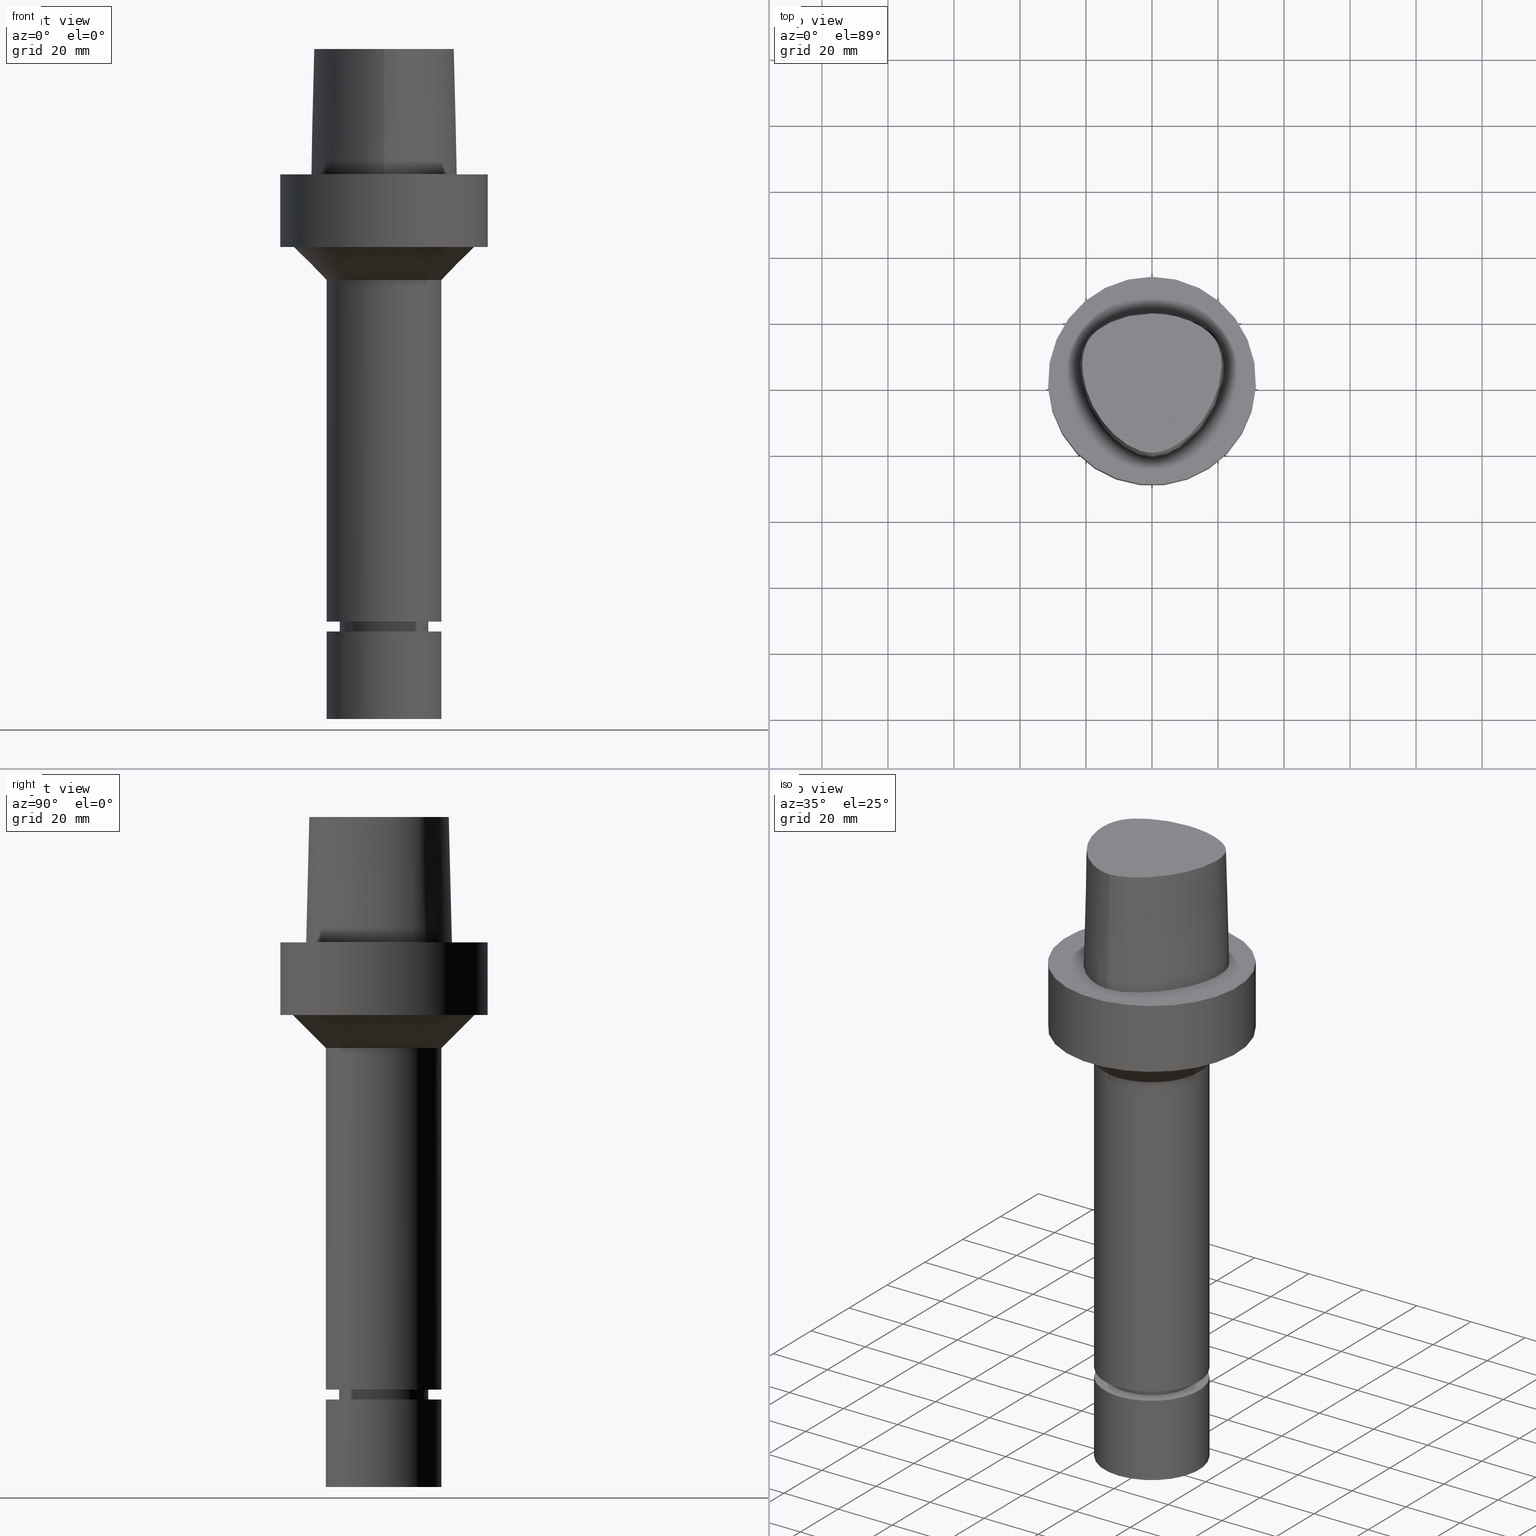
[diagram: canonical four-view strip — front | top / right | iso, engineering-drawing reading convention]
A machine part, canonical four-view strip (front | top / right | iso — engineering-drawing reading convention). The complete STEP part file that produces these views, byte-faithful:
ISO-10303-21;
HEADER;
FILE_DESCRIPTION((''),'1');
FILE_NAME('V:/90_\X2\53D65F9730C730FC30BF\X0\/00_\X2\6DE18DEF30C730FC30BF\X0\/ALL/CAPTO-BKUS\X2\52A05DE556F3\X0\_201801/C6-MEGAER/C6-MEGAER20-165NL.stp','2018-02-01T08:10:21',(''),(''),'Spatial Interop R21 SP3','Kubotek KeyCreator 2011 V10.0.2 (22737)',' ');
FILE_SCHEMA(('automotive_design'));
ENDSEC;
DATA;
#1=MECHANICAL_DESIGN_GEOMETRIC_PRESENTATION_REPRESENTATION(' ',(#14,#15,#16,#17,#18,#19,#20,#21,#22,#23,#24,#25,#26,#27,#28,#29,#30,#31,#32,#33,#34,#35,#36,#37,#38,#39,#40,#41,#42,#43,#44,#45,#46,#47,#48,#49,#50,#51,#52,#53),#10);
#2=PRODUCT_DEFINITION_CONTEXT('',#54,'design');
#3=APPLICATION_PROTOCOL_DEFINITION('INTERNATIONAL STANDARD','automotive_design',1994,#54);
#4=PRODUCT_CATEGORY_RELATIONSHIP('NONE','NONE',#55,#56);
#5=SHAPE_DEFINITION_REPRESENTATION(#57,#58);
#6=PRODUCT_DEFINITION_CONTEXT('',#59,'design');
#7=APPLICATION_PROTOCOL_DEFINITION('INTERNATIONAL STANDARD','automotive_design',1994,#59);
#8=PRODUCT_CATEGORY_RELATIONSHIP('NONE','NONE',#60,#61);
#9=SHAPE_DEFINITION_REPRESENTATION(#62,#63);
#10= (GEOMETRIC_REPRESENTATION_CONTEXT(3)GLOBAL_UNCERTAINTY_ASSIGNED_CONTEXT((#66))GLOBAL_UNIT_ASSIGNED_CONTEXT((#68,#69,#70))REPRESENTATION_CONTEXT('NONE','WORKSPACE'));
#14=STYLED_ITEM('',(#72),#73);
#15=STYLED_ITEM('',(#74),#75);
#16=STYLED_ITEM('',(#76),#77);
#17=STYLED_ITEM('',(#78,#79),#80);
#18=STYLED_ITEM('',(#81,#82),#83);
#19=STYLED_ITEM('',(#84,#85),#86);
#20=STYLED_ITEM('',(#87),#88);
#21=STYLED_ITEM('',(#89,#90),#91);
#22=STYLED_ITEM('',(#92,#93),#94);
#23=STYLED_ITEM('',(#95),#96);
#24=STYLED_ITEM('',(#97),#98);
#25=STYLED_ITEM('',(#99,#100),#101);
#26=STYLED_ITEM('',(#102,#103),#104);
#27=STYLED_ITEM('',(#105),#106);
#28=STYLED_ITEM('',(#107),#108);
#29=STYLED_ITEM('',(#109),#110);
#30=STYLED_ITEM('',(#111),#112);
#31=STYLED_ITEM('',(#113),#114);
#32=STYLED_ITEM('',(#115,#116),#117);
#33=STYLED_ITEM('',(#118),#119);
#34=STYLED_ITEM('',(#120),#121);
#35=STYLED_ITEM('',(#122,#123),#124);
#36=STYLED_ITEM('',(#125,#126),#127);
#37=STYLED_ITEM('',(#128),#129);
#38=STYLED_ITEM('',(#130),#131);
#39=STYLED_ITEM('',(#132,#133),#134);
#40=STYLED_ITEM('',(#135,#136),#137);
#41=STYLED_ITEM('',(#138),#139);
#42=STYLED_ITEM('',(#140,#141),#142);
#43=STYLED_ITEM('',(#143,#144),#145);
#44=STYLED_ITEM('',(#146),#147);
#45=STYLED_ITEM('',(#148),#149);
#46=STYLED_ITEM('',(#150,#151),#152);
#47=STYLED_ITEM('',(#153),#154);
#48=STYLED_ITEM('',(#155,#156),#157);
#49=STYLED_ITEM('',(#158,#159),#160);
#50=STYLED_ITEM('',(#161,#162),#163);
#51=STYLED_ITEM('',(#164,#165),#166);
#52=STYLED_ITEM('',(#167),#168);
#53=STYLED_ITEM('',(#169,#170),#171);
#54=APPLICATION_CONTEXT(' ');
#55=PRODUCT_CATEGORY('part','NONE');
#56=PRODUCT_RELATED_PRODUCT_CATEGORY('detail',' ',(#172));
#57=PRODUCT_DEFINITION_SHAPE('NONE','NONE',#173);
#58=ADVANCED_BREP_SHAPE_REPRESENTATION('Unnamed[1]',(#137,#174),#10);
#59=APPLICATION_CONTEXT(' ');
#60=PRODUCT_CATEGORY('part','NONE');
#61=PRODUCT_RELATED_PRODUCT_CATEGORY('detail',' ',(#175));
#62=PRODUCT_DEFINITION_SHAPE('NONE','NONE',#176);
#63=ADVANCED_BREP_SHAPE_REPRESENTATION('Unnamed[1]',(#86,#177),#10);
#66=UNCERTAINTY_MEASURE_WITH_UNIT(LENGTH_MEASURE(1.0E-006),#68,'','');
#68= (CONVERSION_BASED_UNIT('MILLIMETRE',#180)LENGTH_UNIT()NAMED_UNIT(#183));
#69= (NAMED_UNIT(#185)PLANE_ANGLE_UNIT()SI_UNIT($,.RADIAN.));
#70= (NAMED_UNIT(#185)SOLID_ANGLE_UNIT()SI_UNIT($,.STERADIAN.));
#72=PRESENTATION_STYLE_ASSIGNMENT((#191));
#73=EDGE_CURVE('Unnamed[1]',#192,#192,#193,.T.);
#74=PRESENTATION_STYLE_ASSIGNMENT((#194));
#75=EDGE_CURVE('Unnamed[1]',#195,#195,#196,.T.);
#76=PRESENTATION_STYLE_ASSIGNMENT((#197));
#77=EDGE_CURVE('Unnamed[1]',#198,#198,#199,.T.);
#78=PRESENTATION_STYLE_ASSIGNMENT((#200));
#79=PRESENTATION_STYLE_ASSIGNMENT((#201));
#80=ADVANCED_FACE('Unnamed[1]',(#202,#203),#204,.T.);
#81=PRESENTATION_STYLE_ASSIGNMENT((#205));
#82=PRESENTATION_STYLE_ASSIGNMENT((#206));
#83=ADVANCED_FACE('Unnamed[1]',(#207,#208),#209,.T.);
#84=PRESENTATION_STYLE_ASSIGNMENT((#210));
#85=PRESENTATION_STYLE_ASSIGNMENT((#211));
#86=MANIFOLD_SOLID_BREP('Unnamed[1]',#212);
#87=PRESENTATION_STYLE_ASSIGNMENT((#213));
#88=EDGE_CURVE('Unnamed[1]',#214,#215,#216,.T.);
#89=PRESENTATION_STYLE_ASSIGNMENT((#217));
#90=PRESENTATION_STYLE_ASSIGNMENT((#218));
#91=ADVANCED_FACE('Unnamed[1]',(#219,#220),#221,.T.);
#92=PRESENTATION_STYLE_ASSIGNMENT((#222));
#93=PRESENTATION_STYLE_ASSIGNMENT((#223));
#94=ADVANCED_FACE('Unnamed[1]',(#224,#225),#226,.T.);
#95=PRESENTATION_STYLE_ASSIGNMENT((#227));
#96=EDGE_CURVE('Unnamed[1]',#228,#228,#229,.T.);
#97=PRESENTATION_STYLE_ASSIGNMENT((#230));
#98=EDGE_CURVE('Unnamed[1]',#231,#231,#232,.T.);
#99=PRESENTATION_STYLE_ASSIGNMENT((#233));
#100=PRESENTATION_STYLE_ASSIGNMENT((#234));
#101=ADVANCED_FACE('Unnamed[1]',(#235),#236,.T.);
#102=PRESENTATION_STYLE_ASSIGNMENT((#237));
#103=PRESENTATION_STYLE_ASSIGNMENT((#238));
#104=ADVANCED_FACE('Unnamed[1]',(#239),#240,.T.);
#105=PRESENTATION_STYLE_ASSIGNMENT((#241));
#106=EDGE_CURVE('Unnamed[1]',#214,#242,#243,.T.);
#107=PRESENTATION_STYLE_ASSIGNMENT((#244));
#108=EDGE_CURVE('Unnamed[1]',#245,#245,#246,.T.);
#109=PRESENTATION_STYLE_ASSIGNMENT((#247));
#110=EDGE_CURVE('Unnamed[1]',#214,#248,#249,.T.);
#111=PRESENTATION_STYLE_ASSIGNMENT((#250));
#112=EDGE_CURVE('Unnamed[1]',#251,#251,#252,.T.);
#113=PRESENTATION_STYLE_ASSIGNMENT((#253));
#114=EDGE_CURVE('Unnamed[1]',#215,#254,#255,.T.);
#115=PRESENTATION_STYLE_ASSIGNMENT((#256));
#116=PRESENTATION_STYLE_ASSIGNMENT((#257));
#117=ADVANCED_FACE('Unnamed[1]',(#258,#259),#260,.T.);
#118=PRESENTATION_STYLE_ASSIGNMENT((#261));
#119=EDGE_CURVE('Unnamed[1]',#254,#242,#262,.T.);
#120=PRESENTATION_STYLE_ASSIGNMENT((#263));
#121=EDGE_CURVE('Unnamed[1]',#264,#264,#265,.T.);
#122=PRESENTATION_STYLE_ASSIGNMENT((#266));
#123=PRESENTATION_STYLE_ASSIGNMENT((#267));
#124=ADVANCED_FACE('Unnamed[1]',(#268),#269,.T.);
#125=PRESENTATION_STYLE_ASSIGNMENT((#270));
#126=PRESENTATION_STYLE_ASSIGNMENT((#271));
#127=ADVANCED_FACE('Unnamed[1]',(#272,#273),#274,.T.);
#128=PRESENTATION_STYLE_ASSIGNMENT((#275));
#129=EDGE_CURVE('Unnamed[1]',#248,#254,#276,.T.);
#130=PRESENTATION_STYLE_ASSIGNMENT((#277));
#131=EDGE_CURVE('Unnamed[1]',#278,#278,#279,.T.);
#132=PRESENTATION_STYLE_ASSIGNMENT((#280));
#133=PRESENTATION_STYLE_ASSIGNMENT((#281));
#134=ADVANCED_FACE('Unnamed[1]',(#282),#283,.T.);
#135=PRESENTATION_STYLE_ASSIGNMENT((#284));
#136=PRESENTATION_STYLE_ASSIGNMENT((#285));
#137=MANIFOLD_SOLID_BREP('Unnamed[1]',#286);
#138=PRESENTATION_STYLE_ASSIGNMENT((#287));
#139=EDGE_CURVE('Unnamed[1]',#288,#288,#289,.T.);
#140=PRESENTATION_STYLE_ASSIGNMENT((#290));
#141=PRESENTATION_STYLE_ASSIGNMENT((#291));
#142=ADVANCED_FACE('Unnamed[1]',(#292),#293,.T.);
#143=PRESENTATION_STYLE_ASSIGNMENT((#294));
#144=PRESENTATION_STYLE_ASSIGNMENT((#295));
#145=ADVANCED_FACE('Unnamed[1]',(#296,#297),#298,.T.);
#146=PRESENTATION_STYLE_ASSIGNMENT((#299));
#147=EDGE_CURVE('Unnamed[1]',#242,#215,#300,.T.);
#148=PRESENTATION_STYLE_ASSIGNMENT((#301));
#149=EDGE_CURVE('Unnamed[1]',#302,#302,#303,.T.);
#150=PRESENTATION_STYLE_ASSIGNMENT((#304));
#151=PRESENTATION_STYLE_ASSIGNMENT((#305));
#152=ADVANCED_FACE('Unnamed[1]',(#306,#307),#308,.T.);
#153=PRESENTATION_STYLE_ASSIGNMENT((#309));
#154=EDGE_CURVE('Unnamed[1]',#310,#310,#311,.T.);
#155=PRESENTATION_STYLE_ASSIGNMENT((#312));
#156=PRESENTATION_STYLE_ASSIGNMENT((#313));
#157=ADVANCED_FACE('Unnamed[1]',(#314,#315),#316,.T.);
#158=PRESENTATION_STYLE_ASSIGNMENT((#317));
#159=PRESENTATION_STYLE_ASSIGNMENT((#318));
#160=ADVANCED_FACE('Unnamed[1]',(#319),#320,.T.);
#161=PRESENTATION_STYLE_ASSIGNMENT((#321));
#162=PRESENTATION_STYLE_ASSIGNMENT((#322));
#163=ADVANCED_FACE('Unnamed[1]',(#323),#324,.T.);
#164=PRESENTATION_STYLE_ASSIGNMENT((#325));
#165=PRESENTATION_STYLE_ASSIGNMENT((#326));
#166=ADVANCED_FACE('Unnamed[1]',(#327,#328),#329,.T.);
#167=PRESENTATION_STYLE_ASSIGNMENT((#330));
#168=EDGE_CURVE('Unnamed[1]',#248,#214,#331,.T.);
#169=PRESENTATION_STYLE_ASSIGNMENT((#332));
#170=PRESENTATION_STYLE_ASSIGNMENT((#333));
#171=ADVANCED_FACE('Unnamed[1]',(#334,#335),#336,.T.);
#172=PRODUCT('Unnamed[1]','Unnamed[1]','PART-Unnamed[1]-DESC',(#337));
#173=PRODUCT_DEFINITION('NONE','NONE',#338,#2);
#174=AXIS2_PLACEMENT_3D('',#339,#340,#341);
#175=PRODUCT('Unnamed[1]','Unnamed[1]','PART-Unnamed[1]-DESC',(#342));
#176=PRODUCT_DEFINITION('NONE','NONE',#343,#6);
#177=AXIS2_PLACEMENT_3D('',#344,#345,#346);
#180=LENGTH_MEASURE_WITH_UNIT(LENGTH_MEASURE(1.0),#347);
#183=DIMENSIONAL_EXPONENTS(1.0,0.0,0.0,0.0,0.0,0.0,0.0);
#185=DIMENSIONAL_EXPONENTS(0.0,0.0,0.0,0.0,0.0,0.0,0.0);
#191=CURVE_STYLE('',#348,POSITIVE_LENGTH_MEASURE(1000.0),#349);
#192=VERTEX_POINT('',#350);
#193=CIRCLE('',#351,11.3999999999978);
#194=CURVE_STYLE('',#352,POSITIVE_LENGTH_MEASURE(1000.0),#353);
#195=VERTEX_POINT('',#354);
#196=CIRCLE('',#355,31.5);
#197=CURVE_STYLE('',#356,POSITIVE_LENGTH_MEASURE(1000.0),#357);
#198=VERTEX_POINT('',#358);
#199=CIRCLE('',#359,13.4999999999908);
#200=SURFACE_STYLE_USAGE(.BOTH.,#360);
#201=CURVE_STYLE('',#361,POSITIVE_LENGTH_MEASURE(1000.0),#362);
#202=FACE_BOUND('',#363,.T.);
#203=FACE_BOUND('',#364,.T.);
#204=CONICAL_SURFACE('',#365,11.9499999999988,0.523598775598652);
#205=SURFACE_STYLE_USAGE(.BOTH.,#366);
#206=CURVE_STYLE('',#367,POSITIVE_LENGTH_MEASURE(1000.0),#368);
#207=FACE_BOUND('',#369,.T.);
#208=FACE_BOUND('',#370,.T.);
#209=CYLINDRICAL_SURFACE('',#371,17.5);
#210=SURFACE_STYLE_USAGE(.BOTH.,#372);
#211=CURVE_STYLE('',#373,POSITIVE_LENGTH_MEASURE(1000.0),#374);
#212=CLOSED_SHELL('',(#124,#101,#83));
#213=CURVE_STYLE('',#375,POSITIVE_LENGTH_MEASURE(1000.0),#376);
#214=VERTEX_POINT('',#377);
#215=VERTEX_POINT('',#378);
#216=LINE('',#379,#380);
#217=SURFACE_STYLE_USAGE(.BOTH.,#381);
#218=CURVE_STYLE('',#382,POSITIVE_LENGTH_MEASURE(1000.0),#383);
#219=FACE_BOUND('',#384,.T.);
#220=FACE_BOUND('',#385,.T.);
#221=CONICAL_SURFACE('',#386,13.0000000000002,1.04719755119471);
#222=SURFACE_STYLE_USAGE(.BOTH.,#387);
#223=CURVE_STYLE('',#388,POSITIVE_LENGTH_MEASURE(1000.0),#389);
#224=FACE_BOUND('',#390,.T.);
#225=FACE_OUTER_BOUND('',#391,.T.);
#226=PLANE('',#392);
#227=CURVE_STYLE('',#393,POSITIVE_LENGTH_MEASURE(1000.0),#394);
#228=VERTEX_POINT('',#395);
#229=CIRCLE('',#396,12.4999999999998);
#230=CURVE_STYLE('',#397,POSITIVE_LENGTH_MEASURE(1000.0),#398);
#231=VERTEX_POINT('',#399);
#232=CIRCLE('',#400,27.4999999999996);
#233=SURFACE_STYLE_USAGE(.BOTH.,#401);
#234=CURVE_STYLE('',#402,POSITIVE_LENGTH_MEASURE(1000.0),#403);
#235=FACE_OUTER_BOUND('',#404,.T.);
#236=PLANE('',#405);
#237=SURFACE_STYLE_USAGE(.BOTH.,#406);
#238=CURVE_STYLE('',#407,POSITIVE_LENGTH_MEASURE(1000.0),#408);
#239=FACE_OUTER_BOUND('',#409,.T.);
#240=B_SPLINE_SURFACE_WITH_KNOTS('',3,3,((#410,#411,#412,#413),(#414,#415,#416,#417),(#418,#419,#420,#421),(#422,#423,#424,#425),(#426,#427,#428,#429),(#430,#431,#432,#433),(#434,#435,#436,#437),(#438,#439,#440,#441),(#442,#443,#444,#445),(#446,#447,#448,#449),(#450,#451,#452,#453),(#454,#455,#456,#457),(#458,#459,#460,#461),(#462,#463,#464,#465),(#466,#467,#468,#469),(#470,#471,#472,#473),(#474,#475,#476,#477)),.UNSPECIFIED.,.F.,.F.,.F.,(4,1,1,1,1,1,1,1,1,1,1,1,1,1,4),(4,4),(-13.2302678617486,-12.816821991069,-12.4033761203893,-11.9899302497097,-11.57648437903,-11.1630385083504,-10.9563155730106,-10.7495926376707,-10.3361467669911,-9.92270089631145,-9.09580915495216,-8.26891741359287,-7.44202567223358,-7.02857980155394,-6.6151339308743),(-3.8,0.0),.UNSPECIFIED.);
#241=CURVE_STYLE('',#478,POSITIVE_LENGTH_MEASURE(1000.0),#479);
#242=VERTEX_POINT('',#480);
#243=LINE('',#481,#482);
#244=CURVE_STYLE('',#483,POSITIVE_LENGTH_MEASURE(1000.0),#484);
#245=VERTEX_POINT('',#485);
#246=CIRCLE('',#486,12.4999999999999);
#247=CURVE_STYLE('',#487,POSITIVE_LENGTH_MEASURE(1000.0),#488);
#248=VERTEX_POINT('',#489);
#249=B_SPLINE_CURVE_WITH_KNOTS('',3,(#490,#491,#492,#493,#494,#495,#496,#497,#498,#499,#500,#501,#502,#503,#504,#505),.UNSPECIFIED.,.F.,.F.,(4,1,1,1,1,1,1,1,1,1,1,1,1,4),(0.0,0.447924670568964,0.9388024242536,1.50591409090711,2.07314340012323,2.72424957442464,3.2253501842849,3.80982102049476,4.34867996267067,4.85900173381144,5.37972031856977,6.03459825488646,6.61113557741484,6.61513393087395),.UNSPECIFIED.);
#250=CURVE_STYLE('',#506,POSITIVE_LENGTH_MEASURE(1000.0),#507);
#251=VERTEX_POINT('',#508);
#252=CIRCLE('',#509,13.5000000000005);
#253=CURVE_STYLE('',#510,POSITIVE_LENGTH_MEASURE(1000.0),#511);
#254=VERTEX_POINT('',#512);
#255=B_SPLINE_CURVE_WITH_KNOTS('',3,(#513,#514,#515,#516,#517,#518,#519,#520,#521,#522,#523,#524,#525,#526,#527,#528,#529),.UNSPECIFIED.,.F.,.F.,(4,1,1,1,1,1,1,1,1,1,1,1,1,1,4),(-13.2302678617486,-12.816821991069,-12.4033761203893,-11.9899302497097,-11.57648437903,-11.1630385083504,-10.9563155730106,-10.7495926376707,-10.3361467669911,-9.92270089631145,-9.09580915495216,-8.26891741359287,-7.44202567223358,-7.02857980155394,-6.6151339308743),.UNSPECIFIED.);
#256=SURFACE_STYLE_USAGE(.BOTH.,#530);
#257=CURVE_STYLE('',#531,POSITIVE_LENGTH_MEASURE(1000.0),#532);
#258=FACE_BOUND('',#533,.T.);
#259=FACE_BOUND('',#534,.T.);
#260=CYLINDRICAL_SURFACE('',#535,13.4999999999956);
#261=CURVE_STYLE('',#536,POSITIVE_LENGTH_MEASURE(1000.0),#537);
#262=B_SPLINE_CURVE_WITH_KNOTS('',3,(#538,#539,#540,#541,#542,#543,#544,#545,#546,#547,#548,#549,#550,#551,#552,#553,#554,#555),.UNSPECIFIED.,.F.,.F.,(4,1,1,1,1,1,1,1,1,2,1,1,1,1,4),(-6.6151339308743,-6.20168806019465,-5.78824218951501,-5.37479631883537,-4.96135044815572,-4.13445870679644,-3.30756696543715,-2.89412109475751,-2.48067522407786,-2.06722935339822,-1.65378348271857,-1.24033761203893,-0.826891741359287,-0.413445870679644,0.0),.UNSPECIFIED.);
#263=CURVE_STYLE('',#556,POSITIVE_LENGTH_MEASURE(1000.0),#557);
#264=VERTEX_POINT('',#558);
#265=CIRCLE('',#559,31.5);
#266=SURFACE_STYLE_USAGE(.BOTH.,#560);
#267=CURVE_STYLE('',#561,POSITIVE_LENGTH_MEASURE(1000.0),#562);
#268=FACE_OUTER_BOUND('',#563,.T.);
#269=PLANE('',#564);
#270=SURFACE_STYLE_USAGE(.BOTH.,#565);
#271=CURVE_STYLE('',#566,POSITIVE_LENGTH_MEASURE(1000.0),#567);
#272=FACE_BOUND('',#568,.T.);
#273=FACE_BOUND('',#569,.T.);
#274=CYLINDRICAL_SURFACE('',#570,12.4999999999999);
#275=CURVE_STYLE('',#571,POSITIVE_LENGTH_MEASURE(1000.0),#572);
#276=LINE('',#573,#574);
#277=CURVE_STYLE('',#575,POSITIVE_LENGTH_MEASURE(1000.0),#576);
#278=VERTEX_POINT('',#577);
#279=CIRCLE('',#578,17.4999999999995);
#280=SURFACE_STYLE_USAGE(.BOTH.,#579);
#281=CURVE_STYLE('',#580,POSITIVE_LENGTH_MEASURE(1000.0),#581);
#282=FACE_OUTER_BOUND('',#582,.T.);
#283=PLANE('',#583);
#284=SURFACE_STYLE_USAGE(.BOTH.,#584);
#285=CURVE_STYLE('',#585,POSITIVE_LENGTH_MEASURE(1000.0),#586);
#286=CLOSED_SHELL('',(#104,#163,#142,#160,#94,#166,#157,#152,#145,#171,#117,#91,#127,#80,#134));
#287=CURVE_STYLE('',#587,POSITIVE_LENGTH_MEASURE(1000.0),#588);
#288=VERTEX_POINT('',#589);
#289=CIRCLE('',#590,17.5);
#290=SURFACE_STYLE_USAGE(.BOTH.,#591);
#291=CURVE_STYLE('',#592,POSITIVE_LENGTH_MEASURE(1000.0),#593);
#292=FACE_OUTER_BOUND('',#594,.T.);
#293=CONICAL_SURFACE('',#595,1.0,0.0249931148600041);
#294=SURFACE_STYLE_USAGE(.BOTH.,#596);
#295=CURVE_STYLE('',#597,POSITIVE_LENGTH_MEASURE(1000.0),#598);
#296=FACE_BOUND('',#599,.T.);
#297=FACE_BOUND('',#600,.T.);
#298=CYLINDRICAL_SURFACE('',#601,17.4999999999997);
#299=CURVE_STYLE('',#602,POSITIVE_LENGTH_MEASURE(1000.0),#603);
#300=CIRCLE('',#604,0.949936168436318);
#301=CURVE_STYLE('',#605,POSITIVE_LENGTH_MEASURE(1000.0),#606);
#302=VERTEX_POINT('',#607);
#303=CIRCLE('',#608,17.4999999999999);
#304=SURFACE_STYLE_USAGE(.BOTH.,#609);
#305=CURVE_STYLE('',#610,POSITIVE_LENGTH_MEASURE(1000.0),#611);
#306=FACE_BOUND('',#612,.T.);
#307=FACE_BOUND('',#613,.T.);
#308=CONICAL_SURFACE('',#614,22.4999999999998,0.785398163397431);
#309=CURVE_STYLE('',#615,POSITIVE_LENGTH_MEASURE(1000.0),#616);
#310=VERTEX_POINT('',#617);
#311=CIRCLE('',#618,17.5);
#312=SURFACE_STYLE_USAGE(.BOTH.,#619);
#313=CURVE_STYLE('',#620,POSITIVE_LENGTH_MEASURE(1000.0),#621);
#314=FACE_BOUND('',#622,.T.);
#315=FACE_OUTER_BOUND('',#623,.T.);
#316=PLANE('',#624);
#317=SURFACE_STYLE_USAGE(.BOTH.,#625);
#318=CURVE_STYLE('',#626,POSITIVE_LENGTH_MEASURE(1000.0),#627);
#319=FACE_OUTER_BOUND('',#628,.T.);
#320=PLANE('',#629);
#321=SURFACE_STYLE_USAGE(.BOTH.,#630);
#322=CURVE_STYLE('',#631,POSITIVE_LENGTH_MEASURE(1000.0),#632);
#323=FACE_OUTER_BOUND('',#633,.T.);
#324=B_SPLINE_SURFACE_WITH_KNOTS('',3,3,((#634,#635,#636,#637),(#638,#639,#640,#641),(#642,#643,#644,#645),(#646,#647,#648,#649),(#650,#651,#652,#653),(#654,#655,#656,#657),(#658,#659,#660,#661),(#662,#663,#664,#665),(#666,#667,#668,#669),(#670,#671,#672,#673),(#674,#675,#676,#677),(#678,#679,#680,#681),(#682,#683,#684,#685),(#686,#687,#688,#689),(#690,#691,#692,#693),(#694,#695,#696,#697),(#698,#699,#700,#701),(#702,#703,#704,#705)),.UNSPECIFIED.,.F.,.F.,.F.,(4,1,1,1,1,1,1,1,1,2,1,1,1,1,4),(4,4),(-6.6151339308743,-6.20168806019465,-5.78824218951501,-5.37479631883537,-4.96135044815572,-4.13445870679644,-3.30756696543715,-2.89412109475751,-2.48067522407786,-2.06722935339822,-1.65378348271857,-1.24033761203893,-0.826891741359287,-0.413445870679644,0.0),(-3.8,0.0),.UNSPECIFIED.);
#325=SURFACE_STYLE_USAGE(.BOTH.,#706);
#326=CURVE_STYLE('',#707,POSITIVE_LENGTH_MEASURE(1000.0),#708);
#327=FACE_BOUND('',#709,.T.);
#328=FACE_BOUND('',#710,.T.);
#329=CYLINDRICAL_SURFACE('',#711,31.5);
#330=CURVE_STYLE('',#712,POSITIVE_LENGTH_MEASURE(1000.0),#713);
#331=B_SPLINE_CURVE_WITH_KNOTS('',3,(#714,#715,#716,#717,#718,#719,#720,#721,#722,#723,#724,#725,#726,#727,#728,#729),.UNSPECIFIED.,.F.,.F.,(4,1,1,1,1,1,1,1,1,1,1,1,1,4),(6.61513393087476,6.99917207152274,7.48193246986995,7.96289324787093,8.45540287038584,9.10291653679981,9.67129810936083,10.1618749681153,10.6358867802489,11.1080734988593,11.6043706019633,12.09451993853,12.6985979284494,13.2302678617486),.UNSPECIFIED.);
#332=SURFACE_STYLE_USAGE(.BOTH.,#730);
#333=CURVE_STYLE('',#731,POSITIVE_LENGTH_MEASURE(1000.0),#732);
#334=FACE_BOUND('',#733,.T.);
#335=FACE_OUTER_BOUND('',#734,.T.);
#336=PLANE('',#735);
#337=PRODUCT_CONTEXT('',#54,'mechanical');
#338=PRODUCT_DEFINITION_FORMATION_WITH_SPECIFIED_SOURCE(' ','NONE',#172,.NOT_KNOWN.);
#339=CARTESIAN_POINT('',(0.0,0.0,0.0));
#340=DIRECTION('',(0.0,0.0,1.0));
#341=DIRECTION('',(1.0,0.0,0.0));
#342=PRODUCT_CONTEXT('',#59,'mechanical');
#343=PRODUCT_DEFINITION_FORMATION_WITH_SPECIFIED_SOURCE(' ','NONE',#175,.NOT_KNOWN.);
#344=CARTESIAN_POINT('',(0.0,0.0,0.0));
#345=DIRECTION('',(0.0,0.0,1.0));
#346=DIRECTION('',(1.0,0.0,0.0));
#347= (NAMED_UNIT(#183)LENGTH_UNIT()SI_UNIT(.MILLI.,.METRE.));
#348=DRAUGHTING_PRE_DEFINED_CURVE_FONT('continuous');
#349=COLOUR_RGB('',0.0,1.0,0.0);
#350=CARTESIAN_POINT('',(9.50325916138347E-015,11.3999999999978,-155.2));
#351=AXIS2_PLACEMENT_3D('',#737,#738,#739);
#352=DRAUGHTING_PRE_DEFINED_CURVE_FONT('continuous');
#353=COLOUR_RGB('',0.0,1.0,0.0);
#354=CARTESIAN_POINT('',(1.34711147906212E-015,31.5,-22.0000000000006));
#355=AXIS2_PLACEMENT_3D('',#740,#741,#742);
#356=DRAUGHTING_PRE_DEFINED_CURVE_FONT('continuous');
#357=COLOUR_RGB('',0.0,1.0,0.0);
#358=CARTESIAN_POINT('',(8.29698206422331E-015,13.4999999999908,-135.5));
#359=AXIS2_PLACEMENT_3D('',#743,#744,#745);
#360=SURFACE_SIDE_STYLE('',(#746));
#361=DRAUGHTING_PRE_DEFINED_CURVE_FONT('continuous');
#362=COLOUR_RGB('',0.0,1.0,0.0);
#363=EDGE_LOOP('',(#747));
#364=EDGE_LOOP('',(#748));
#365=AXIS2_PLACEMENT_3D('',#749,#750,#751);
#366=SURFACE_SIDE_STYLE('',(#752));
#367=DRAUGHTING_PRE_DEFINED_CURVE_FONT('continuous');
#368=COLOUR_RGB('',0.0,1.0,0.0);
#369=EDGE_LOOP('',(#753));
#370=EDGE_LOOP('',(#754));
#371=AXIS2_PLACEMENT_3D('',#755,#756,#757);
#372=SURFACE_SIDE_STYLE('',(#758));
#373=DRAUGHTING_PRE_DEFINED_CURVE_FONT('continuous');
#374=COLOUR_RGB('',0.0,1.0,0.0);
#375=DRAUGHTING_PRE_DEFINED_CURVE_FONT('continuous');
#376=COLOUR_RGB('',0.0,1.0,0.0);
#377=CARTESIAN_POINT('',(-0.001218547003662,19.7276821925089,38.0));
#378=CARTESIAN_POINT('',(0.044682985379347,20.6765087343109,1.61778115328528E-031));
#379=CARTESIAN_POINT('',(-0.001218547003662,19.7276821925089,38.0));
#380=VECTOR('',#759,38.0118715503078);
#381=SURFACE_SIDE_STYLE('',(#760));
#382=DRAUGHTING_PRE_DEFINED_CURVE_FONT('continuous');
#383=COLOUR_RGB('',0.0,1.0,0.0);
#384=EDGE_LOOP('',(#761));
#385=EDGE_LOOP('',(#762));
#386=AXIS2_PLACEMENT_3D('',#763,#764,#765);
#387=SURFACE_SIDE_STYLE('',(#766));
#388=DRAUGHTING_PRE_DEFINED_CURVE_FONT('continuous');
#389=COLOUR_RGB('',0.0,1.0,0.0);
#390=EDGE_LOOP('',(#767,#768,#769));
#391=EDGE_LOOP('',(#770));
#392=AXIS2_PLACEMENT_3D('',#771,#772,#773);
#393=DRAUGHTING_PRE_DEFINED_CURVE_FONT('continuous');
#394=COLOUR_RGB('',0.0,1.0,0.0);
#395=CARTESIAN_POINT('',(9.38659588512362E-015,12.4999999999998,-153.294744111673));
#396=AXIS2_PLACEMENT_3D('',#774,#775,#776);
#397=DRAUGHTING_PRE_DEFINED_CURVE_FONT('continuous');
#398=COLOUR_RGB('',0.0,1.0,0.0);
#399=CARTESIAN_POINT('',(1.34711147906211E-015,27.4999999999996,-22.0000000000003));
#400=AXIS2_PLACEMENT_3D('',#777,#778,#779);
#401=SURFACE_SIDE_STYLE('',(#780));
#402=DRAUGHTING_PRE_DEFINED_CURVE_FONT('continuous');
#403=COLOUR_RGB('',0.0,1.0,0.0);
#404=EDGE_LOOP('',(#781));
#405=AXIS2_PLACEMENT_3D('',#782,#783,#784);
#406=SURFACE_SIDE_STYLE('',(#785));
#407=DRAUGHTING_PRE_DEFINED_CURVE_FONT('continuous');
#408=COLOUR_RGB('',0.0,1.0,0.0);
#409=EDGE_LOOP('',(#786,#787,#788,#789));
#410=CARTESIAN_POINT('',(-0.001218367817519,19.7276822012873,38.0));
#411=CARTESIAN_POINT('',(0.014082083248157,20.0439577123075,25.3333333333066));
#412=CARTESIAN_POINT('',(0.029382534313671,20.3602332232908,12.6666666666934));
#413=CARTESIAN_POINT('',(0.044682985379347,20.6765087343109,1.61778115328528E-031));
#414=CARTESIAN_POINT('',(1.37788651195108,19.6609652834875,38.0));
#415=CARTESIAN_POINT('',(1.3931885827258,19.9772407169847,25.3333333333066));
#416=CARTESIAN_POINT('',(1.40849065356095,20.2935162254648,12.6666666666934));
#417=CARTESIAN_POINT('',(1.42379272427753,20.6097915814392,8.62816615085482E-032));
#418=CARTESIAN_POINT('',(4.135446440878,19.5347778787784,38.0));
#419=CARTESIAN_POINT('',(4.16466278851883,19.8511031866125,25.3333333333066));
#420=CARTESIAN_POINT('',(4.1938791526746,20.1674284644204,12.6666666666934));
#421=CARTESIAN_POINT('',(4.2230955003445,20.4837538303966,1.4791141972894E-031));
#422=CARTESIAN_POINT('',(8.213607363795,18.7706026638736,38.0));
#423=CARTESIAN_POINT('',(8.29980745008421,19.0767495109635,25.3333333333066));
#424=CARTESIAN_POINT('',(8.38600751285747,19.3828964329996,12.6666666666934));
#425=CARTESIAN_POINT('',(8.47220762821777,19.6890432607088,9.86076131526265E-032));
#426=CARTESIAN_POINT('',(12.1316338645671,17.3698624840857,38.0));
#427=CARTESIAN_POINT('',(12.2591308270381,17.6610739397708,25.3333333333066));
#428=CARTESIAN_POINT('',(12.3866278083543,17.9522853923553,12.6666666666934));
#429=CARTESIAN_POINT('',(12.5141247708253,18.2434968480404,0.0));
#430=CARTESIAN_POINT('',(15.7706546153679,15.3789501349612,38.0));
#431=CARTESIAN_POINT('',(15.9483905900895,15.6437731794811,25.3333333333066));
#432=CARTESIAN_POINT('',(16.1261265513272,15.9085961736944,12.6666666666934));
#433=CARTESIAN_POINT('',(16.3038624872874,16.1734192182143,1.97215226305253E-031));
#434=CARTESIAN_POINT('',(18.4265894256284,13.0570022172893,38.0));
#435=CARTESIAN_POINT('',(18.6659567517146,13.2725589420689,25.3333333333066));
#436=CARTESIAN_POINT('',(18.9053240921419,13.4881156488541,12.6666666666934));
#437=CARTESIAN_POINT('',(19.1446913988473,13.7036723639434,-1.97215226305253E-031));
#438=CARTESIAN_POINT('',(19.8679958653038,10.6923771981998,38.0));
#439=CARTESIAN_POINT('',(20.1559937048299,10.8287388264873,25.3333333333066));
#440=CARTESIAN_POINT('',(20.4439915656177,10.965100461641,12.6666666666934));
#441=CARTESIAN_POINT('',(20.7319894342149,11.1014620996188,0.0));
#442=CARTESIAN_POINT('',(20.8470867582337,8.07149548576131,38.0));
#443=CARTESIAN_POINT('',(21.1591164072431,8.14132775555392,25.3333333333066));
#444=CARTESIAN_POINT('',(21.4711459821861,8.21116003697855,12.6666666666934));
#445=CARTESIAN_POINT('',(21.7831756505763,8.28099229708081,-1.97215226305253E-031));
#446=CARTESIAN_POINT('',(21.2693244256982,4.61157245650171,38.0));
#447=CARTESIAN_POINT('',(21.5881576801997,4.6105997689982,25.3333333333066));
#448=CARTESIAN_POINT('',(21.9069908544037,4.60962709346857,12.6666666666934));
#449=CARTESIAN_POINT('',(22.2258240701438,4.60865440596506,0.0));
#450=CARTESIAN_POINT('',(20.8071610855575,-0.912828649855193,38.0));
#451=CARTESIAN_POINT('',(21.119311671178,-0.979640884839481,25.3333333333066));
#452=CARTESIAN_POINT('',(21.4314624224461,-1.04645306732201,12.6666666666934));
#453=CARTESIAN_POINT('',(21.7436130080666,-1.11326526354485,0.0));
#454=CARTESIAN_POINT('',(18.6841935581315,-7.54428794252837,38.0));
#455=CARTESIAN_POINT('',(18.9734452551861,-7.6809665891091,25.3333333333066));
#456=CARTESIAN_POINT('',(19.2626970689956,-7.81764505382656,12.6666666666934));
#457=CARTESIAN_POINT('',(19.5519487660502,-7.95432366164584,0.0));
#458=CARTESIAN_POINT('',(14.2175552814,-14.5971504342323,38.0));
#459=CARTESIAN_POINT('',(14.4641757465198,-14.8010930946929,25.3333333333066));
#460=CARTESIAN_POINT('',(14.710796247264,-15.0050359737917,12.6666666666934));
#461=CARTESIAN_POINT('',(14.9574167123838,-15.2089785567293,0.0));
#462=CARTESIAN_POINT('',(9.0844808732933,-19.3179298129689,38.0));
#463=CARTESIAN_POINT('',(9.27912152349017,-19.572866915557,25.3333333333066));
#464=CARTESIAN_POINT('',(9.47376218971294,-19.827804295621,12.6666666666934));
#465=CARTESIAN_POINT('',(9.66840283021945,-20.0827414369705,-9.86076131526265E-032));
#466=CARTESIAN_POINT('',(4.17112919194182,-21.8987568152736,38.0));
#467=CARTESIAN_POINT('',(4.28618163483998,-22.1973837173649,25.3333333333066));
#468=CARTESIAN_POINT('',(4.40123406239433,-22.4960105163661,12.6666666666934));
#469=CARTESIAN_POINT('',(4.51628650521788,-22.7946374572188,-9.86076131526265E-032));
#470=CARTESIAN_POINT('',(1.41533654381097,-22.5120888467812,38.0));
#471=CARTESIAN_POINT('',(1.46311520162011,-22.8284916374445,25.3333333333066));
#472=CARTESIAN_POINT('',(1.51089385942236,-23.144894486341,12.6666666666934));
#473=CARTESIAN_POINT('',(1.55867251738073,-23.4612972770043,-1.23259516440783E-032));
#474=CARTESIAN_POINT('',(0.038736923393866,-22.5191997536361,38.0));
#475=CARTESIAN_POINT('',(0.04035580478973,-22.8358410047159,25.3333333333066));
#476=CARTESIAN_POINT('',(0.041974686185626,-23.1524822558133,12.6666666666934));
#477=CARTESIAN_POINT('',(0.04359356758149,-23.4691235068931,7.78075697532443E-032));
#478=DRAUGHTING_PRE_DEFINED_CURVE_FONT('continuous');
#479=COLOUR_RGB('',0.0,1.0,0.0);
#480=CARTESIAN_POINT('',(-0.045171994691285,20.6766009553285,1.6755590516169E-031));
#481=CARTESIAN_POINT('',(-0.001218547003662,19.7276821925089,38.0));
#482=VECTOR('',#790,38.0118715498723);
#483=DRAUGHTING_PRE_DEFINED_CURVE_FONT('continuous');
#484=COLOUR_RGB('',0.0,1.0,0.0);
#485=CARTESIAN_POINT('',(8.68884914768171E-015,12.4999999999999,-141.899675134598));
#486=AXIS2_PLACEMENT_3D('',#791,#792,#793);
#487=DRAUGHTING_PRE_DEFINED_CURVE_FONT('continuous');
#488=COLOUR_RGB('',0.0,1.0,0.0);
#489=CARTESIAN_POINT('',(0.038736923393866,-22.5191997536361,38.0));
#490=CARTESIAN_POINT('',(-0.001218547003662,19.7276821925089,38.0));
#491=CARTESIAN_POINT('',(-1.49408492138443,19.6585333605309,38.0));
#492=CARTESIAN_POINT('',(-4.62297391420352,19.513604770166,38.0));
#493=CARTESIAN_POINT('',(-9.56160616752212,18.4291575730197,38.0));
#494=CARTESIAN_POINT('',(-14.5427684976927,16.2697452580488,38.0));
#495=CARTESIAN_POINT('',(-19.4315563551602,12.5302108980807,38.0));
#496=CARTESIAN_POINT('',(-21.306358833612,6.76352894547076,38.0));
#497=CARTESIAN_POINT('',(-21.0724946936277,0.957075236984038,38.0));
#498=CARTESIAN_POINT('',(-19.7876470880144,-4.34628503581652,38.0));
#499=CARTESIAN_POINT('',(-17.5396999600095,-9.33314444653089,38.0));
#500=CARTESIAN_POINT('',(-14.645447733857,-13.7185760345629,38.0));
#501=CARTESIAN_POINT('',(-10.7996726536643,-17.856257282137,38.0));
#502=CARTESIAN_POINT('',(-6.00479510196376,-21.2687382067675,38.0));
#503=CARTESIAN_POINT('',(-1.90747171908525,-22.5250621415864,38.0));
#504=CARTESIAN_POINT('',(0.025424107066464,-22.5192678176378,38.0));
#505=CARTESIAN_POINT('',(0.038736923394311,-22.519199753636,38.0));
#506=DRAUGHTING_PRE_DEFINED_CURVE_FONT('continuous');
#507=COLOUR_RGB('',0.0,1.0,0.0);
#508=CARTESIAN_POINT('',(8.65349663972404E-015,13.5000000000005,-141.322324865405));
#509=AXIS2_PLACEMENT_3D('',#794,#795,#796);
#510=DRAUGHTING_PRE_DEFINED_CURVE_FONT('continuous');
#511=COLOUR_RGB('',0.0,1.0,0.0);
#512=CARTESIAN_POINT('',(0.04359356758149,-23.4691235068931,7.78075697532443E-032));
#513=CARTESIAN_POINT('',(0.044682985379347,20.6765087343109,1.61778115328528E-031));
#514=CARTESIAN_POINT('',(1.42379272427753,20.6097915814392,8.62816615085482E-032));
#515=CARTESIAN_POINT('',(4.2230955003445,20.4837538303966,1.4791141972894E-031));
#516=CARTESIAN_POINT('',(8.47220762821777,19.6890432607088,9.86076131526265E-032));
#517=CARTESIAN_POINT('',(12.5141247708253,18.2434968480404,0.0));
#518=CARTESIAN_POINT('',(16.3038624872874,16.1734192182143,1.97215226305253E-031));
#519=CARTESIAN_POINT('',(19.1446913988473,13.7036723639434,-1.97215226305253E-031));
#520=CARTESIAN_POINT('',(20.7319894342149,11.1014620996188,0.0));
#521=CARTESIAN_POINT('',(21.7831756505763,8.28099229708081,-1.97215226305253E-031));
#522=CARTESIAN_POINT('',(22.2258240701438,4.60865440596506,0.0));
#523=CARTESIAN_POINT('',(21.7436130080666,-1.11326526354485,0.0));
#524=CARTESIAN_POINT('',(19.5519487660502,-7.95432366164584,0.0));
#525=CARTESIAN_POINT('',(14.9574167123838,-15.2089785567293,0.0));
#526=CARTESIAN_POINT('',(9.66840283021945,-20.0827414369705,-9.86076131526265E-032));
#527=CARTESIAN_POINT('',(4.51628650521788,-22.7946374572188,-9.86076131526265E-032));
#528=CARTESIAN_POINT('',(1.55867251738073,-23.4612972770043,-1.23259516440783E-032));
#529=CARTESIAN_POINT('',(0.04359356758149,-23.4691235068931,7.78075697532443E-032));
#530=SURFACE_SIDE_STYLE('',(#797));
#531=DRAUGHTING_PRE_DEFINED_CURVE_FONT('continuous');
#532=COLOUR_RGB('',0.0,1.0,0.0);
#533=EDGE_LOOP('',(#798));
#534=EDGE_LOOP('',(#799));
#535=AXIS2_PLACEMENT_3D('',#800,#801,#802);
#536=DRAUGHTING_PRE_DEFINED_CURVE_FONT('continuous');
#537=COLOUR_RGB('',0.0,1.0,0.0);
#538=CARTESIAN_POINT('',(0.04359356758149,-23.4691235068931,7.78075697532443E-032));
#539=CARTESIAN_POINT('',(-1.4714994713963,-23.4767895315797,2.46519032881566E-032));
#540=CARTESIAN_POINT('',(-4.43923476371401,-22.821149804767,-4.93038065763132E-032));
#541=CARTESIAN_POINT('',(-8.35043230079961,-20.8000751253325,-9.86076131526265E-032));
#542=CARTESIAN_POINT('',(-11.744900222602,-18.1556117874078,-1.97215226305253E-031));
#543=CARTESIAN_POINT('',(-15.6989602501314,-14.0406306929147,-1.97215226305253E-031));
#544=CARTESIAN_POINT('',(-19.5352875070682,-8.00624990770787,1.97215226305253E-031));
#545=CARTESIAN_POINT('',(-21.7205626190491,-1.16081708945282,0.0));
#546=CARTESIAN_POINT('',(-22.2486616783342,4.54965558738736,0.0));
#547=CARTESIAN_POINT('',(-21.6646421256468,9.00229539124618,0.0));
#548=CARTESIAN_POINT('',(-20.3945635471922,11.7780544971003,0.0));
#549=CARTESIAN_POINT('',(-18.5925528034471,14.1980602922581,0.0));
#550=CARTESIAN_POINT('',(-16.3226584122258,16.1777748720707,0.0));
#551=CARTESIAN_POINT('',(-12.5076407874579,18.2524201541303,9.86076131526265E-032));
#552=CARTESIAN_POINT('',(-8.46776192107786,19.679114377952,9.86076131526265E-032));
#553=CARTESIAN_POINT('',(-4.23043497193604,20.487781597334,1.97215226305253E-031));
#554=CARTESIAN_POINT('',(-1.42313094248379,20.6127745766442,1.10933564796705E-031));
#555=CARTESIAN_POINT('',(-0.045171994691285,20.6766009553285,1.6755590516169E-031));
#556=DRAUGHTING_PRE_DEFINED_CURVE_FONT('continuous');
#557=COLOUR_RGB('',0.0,1.0,0.0);
#558=CARTESIAN_POINT('',(-3.88267476788467E-031,31.5,3.85763741731416E-015));
#559=AXIS2_PLACEMENT_3D('',#803,#804,#805);
#560=SURFACE_SIDE_STYLE('',(#806));
#561=DRAUGHTING_PRE_DEFINED_CURVE_FONT('continuous');
#562=COLOUR_RGB('',0.0,1.0,0.0);
#563=EDGE_LOOP('',(#807));
#564=AXIS2_PLACEMENT_3D('',#808,#809,#810);
#565=SURFACE_SIDE_STYLE('',(#811));
#566=DRAUGHTING_PRE_DEFINED_CURVE_FONT('continuous');
#567=COLOUR_RGB('',0.0,1.0,0.0);
#568=EDGE_LOOP('',(#812));
#569=EDGE_LOOP('',(#813));
#570=AXIS2_PLACEMENT_3D('',#814,#815,#816);
#571=DRAUGHTING_PRE_DEFINED_CURVE_FONT('continuous');
#572=COLOUR_RGB('',0.0,1.0,0.0);
#573=CARTESIAN_POINT('',(0.038736923393866,-22.5191997536361,38.0));
#574=VECTOR('',#817,38.0118715498723);
#575=DRAUGHTING_PRE_DEFINED_CURVE_FONT('continuous');
#576=COLOUR_RGB('',0.0,1.0,0.0);
#577=CARTESIAN_POINT('',(8.29698206422331E-015,17.4999999999996,-135.5));
#578=AXIS2_PLACEMENT_3D('',#818,#819,#820);
#579=SURFACE_SIDE_STYLE('',(#821));
#580=DRAUGHTING_PRE_DEFINED_CURVE_FONT('continuous');
#581=COLOUR_RGB('',0.0,1.0,0.0);
#582=EDGE_LOOP('',(#822));
#583=AXIS2_PLACEMENT_3D('',#823,#824,#825);
#584=SURFACE_SIDE_STYLE('',(#826));
#585=DRAUGHTING_PRE_DEFINED_CURVE_FONT('continuous');
#586=COLOUR_RGB('',0.0,1.0,0.0);
#587=DRAUGHTING_PRE_DEFINED_CURVE_FONT('continuous');
#588=COLOUR_RGB('',0.0,1.0,0.0);
#589=CARTESIAN_POINT('',(1.01033360929657E-014,17.5,-165.0));
#590=AXIS2_PLACEMENT_3D('',#827,#828,#829);
#591=SURFACE_SIDE_STYLE('',(#830));
#592=DRAUGHTING_PRE_DEFINED_CURVE_FONT('continuous');
#593=COLOUR_RGB('',0.0,1.0,0.0);
#594=EDGE_LOOP('',(#831,#832,#833));
#595=AXIS2_PLACEMENT_3D('',#834,#835,#836);
#596=SURFACE_SIDE_STYLE('',(#837));
#597=DRAUGHTING_PRE_DEFINED_CURVE_FONT('continuous');
#598=COLOUR_RGB('',0.0,1.0,0.0);
#599=EDGE_LOOP('',(#838));
#600=EDGE_LOOP('',(#839));
#601=AXIS2_PLACEMENT_3D('',#840,#841,#842);
#602=DRAUGHTING_PRE_DEFINED_CURVE_FONT('continuous');
#603=COLOUR_RGB('',0.0,1.0,0.0);
#604=AXIS2_PLACEMENT_3D('',#843,#844,#845);
#605=DRAUGHTING_PRE_DEFINED_CURVE_FONT('continuous');
#606=COLOUR_RGB('',0.0,1.0,0.0);
#607=CARTESIAN_POINT('',(1.95943487863578E-015,17.4999999999999,-32.0000000000002));
#608=AXIS2_PLACEMENT_3D('',#846,#847,#848);
#609=SURFACE_SIDE_STYLE('',(#849));
#610=DRAUGHTING_PRE_DEFINED_CURVE_FONT('continuous');
#611=COLOUR_RGB('',0.0,1.0,0.0);
#612=EDGE_LOOP('',(#850));
#613=EDGE_LOOP('',(#851));
#614=AXIS2_PLACEMENT_3D('',#852,#853,#854);
#615=DRAUGHTING_PRE_DEFINED_CURVE_FONT('continuous');
#616=COLOUR_RGB('',0.0,1.0,0.0);
#617=CARTESIAN_POINT('',(8.48068001842678E-015,17.5,-138.500015258789));
#618=AXIS2_PLACEMENT_3D('',#855,#856,#857);
#619=SURFACE_SIDE_STYLE('',(#858));
#620=DRAUGHTING_PRE_DEFINED_CURVE_FONT('continuous');
#621=COLOUR_RGB('',0.0,1.0,0.0);
#622=EDGE_LOOP('',(#859));
#623=EDGE_LOOP('',(#860));
#624=AXIS2_PLACEMENT_3D('',#861,#862,#863);
#625=SURFACE_SIDE_STYLE('',(#864));
#626=DRAUGHTING_PRE_DEFINED_CURVE_FONT('continuous');
#627=COLOUR_RGB('',0.0,1.0,0.0);
#628=EDGE_LOOP('',(#865,#866));
#629=AXIS2_PLACEMENT_3D('',#867,#868,#869);
#630=SURFACE_SIDE_STYLE('',(#870));
#631=DRAUGHTING_PRE_DEFINED_CURVE_FONT('continuous');
#632=COLOUR_RGB('',0.0,1.0,0.0);
#633=EDGE_LOOP('',(#871,#872,#873,#874));
#634=CARTESIAN_POINT('',(0.038736923393866,-22.5191997536361,38.0));
#635=CARTESIAN_POINT('',(0.04035580478973,-22.8358410047159,25.3333333333066));
#636=CARTESIAN_POINT('',(0.041974686185626,-23.1524822558133,12.6666666666934));
#637=CARTESIAN_POINT('',(0.04359356758149,-23.4691235068931,7.78075697532443E-032));
#638=CARTESIAN_POINT('',(-1.33786123484754,-22.5261650259856,38.0));
#639=CARTESIAN_POINT('',(-1.38240731367927,-22.8430399310626,25.3333333333066));
#640=CARTESIAN_POINT('',(-1.42695339249092,-23.1599147815484,12.6666666666934));
#641=CARTESIAN_POINT('',(-1.4714994713963,-23.4767895315797,2.46519032881566E-032));
#642=CARTESIAN_POINT('',(-4.08909358431842,-21.9268839879558,38.0));
#643=CARTESIAN_POINT('',(-4.20580731135515,-22.2249725500078,25.3333333333066));
#644=CARTESIAN_POINT('',(-4.32252104640446,-22.5230611651922,12.6666666666934));
#645=CARTESIAN_POINT('',(-4.43923476371401,-22.821149804767,-4.93038065763132E-032));
#646=CARTESIAN_POINT('',(-7.8333083619947,-19.9973514861616,38.0));
#647=CARTESIAN_POINT('',(-8.00568301809614,-20.2649260859405,25.3333333333066));
#648=CARTESIAN_POINT('',(-8.1780576640789,-20.532500564315,12.6666666666934));
#649=CARTESIAN_POINT('',(-8.35043230079961,-20.8000751253325,-9.86076131526265E-032));
#650=CARTESIAN_POINT('',(-11.1035071147626,-17.450554957873,38.0));
#651=CARTESIAN_POINT('',(-11.3173048160562,-17.6855739222454,25.3333333333066));
#652=CARTESIAN_POINT('',(-11.5311025116181,-17.9205928617968,12.6666666666934));
#653=CARTESIAN_POINT('',(-11.744900222602,-18.1556117874078,-1.97215226305253E-031));
#654=CARTESIAN_POINT('',(-14.9379535189057,-13.461132049697,38.0));
#655=CARTESIAN_POINT('',(-15.191622410671,-13.6542981711372,25.3333333333066));
#656=CARTESIAN_POINT('',(-15.4452913389853,-13.8474645327131,12.6666666666934));
#657=CARTESIAN_POINT('',(-15.6989602501314,-14.0406306929147,-1.97215226305253E-031));
#658=CARTESIAN_POINT('',(-18.6681263017223,-7.59391757463204,38.0));
#659=CARTESIAN_POINT('',(-18.9571800800711,-7.73136168081928,25.3333333333066));
#660=CARTESIAN_POINT('',(-19.2462337287194,-7.86880572399774,12.6666666666934));
#661=CARTESIAN_POINT('',(-19.5352875070682,-8.00624990770787,1.97215226305253E-031));
#662=CARTESIAN_POINT('',(-20.7857899858339,-0.952862819790525,38.0));
#663=CARTESIAN_POINT('',(-21.0973808305434,-1.02218087467418,25.3333333333066));
#664=CARTESIAN_POINT('',(-21.408971677436,-1.09149899580772,12.6666666666934));
#665=CARTESIAN_POINT('',(-21.7205626190491,-1.16081708945282,0.0));
#666=CARTESIAN_POINT('',(-21.2911760556836,4.5469215763113,38.0));
#667=CARTESIAN_POINT('',(-21.610337904926,4.54783292082248,25.3333333333066));
#668=CARTESIAN_POINT('',(-21.9294998290918,4.54874426225691,12.6666666666934));
#669=CARTESIAN_POINT('',(-22.2486616783342,4.54965558738736,0.0));
#670=CARTESIAN_POINT('',(-20.7345309521958,8.74909381391006,38.0));
#671=CARTESIAN_POINT('',(-21.0445680426217,8.83349432450556,25.3333333333066));
#672=CARTESIAN_POINT('',(-21.3546050933631,8.91789488065068,12.6666666666934));
#673=CARTESIAN_POINT('',(-21.6646421256468,9.00229539124618,0.0));
#674=CARTESIAN_POINT('',(-19.5531512296439,11.3174844040833,38.0));
#675=CARTESIAN_POINT('',(-19.8336219699984,11.4710077674213,25.3333333333066));
#676=CARTESIAN_POINT('',(-20.1140927680763,11.6245311337623,12.6666666666934));
#677=CARTESIAN_POINT('',(-20.3945635471922,11.7780544971003,0.0));
#678=CARTESIAN_POINT('',(-17.9100913688793,13.524027510437,38.0));
#679=CARTESIAN_POINT('',(-18.1375785458768,13.7487051053655,25.3333333333066));
#680=CARTESIAN_POINT('',(-18.365065665211,13.9733826973296,12.6666666666934));
#681=CARTESIAN_POINT('',(-18.5925528034471,14.1980602922581,0.0));
#682=CARTESIAN_POINT('',(-15.7996349656398,15.3762170634413,38.0));
#683=CARTESIAN_POINT('',(-15.9739761051783,15.6434029846179,25.3333333333066));
#684=CARTESIAN_POINT('',(-16.1483172726872,15.9105889315134,12.6666666666934));
#685=CARTESIAN_POINT('',(-16.3226584122258,16.1777748720707,0.0));
#686=CARTESIAN_POINT('',(-12.1175640002064,17.3825162484012,38.0));
#687=CARTESIAN_POINT('',(-12.2475895903055,17.6724842099619,25.3333333333066));
#688=CARTESIAN_POINT('',(-12.3776152070492,17.9624521925696,12.6666666666934));
#689=CARTESIAN_POINT('',(-12.5076407874579,18.2524201541303,9.86076131526265E-032));
#690=CARTESIAN_POINT('',(-8.21761151654222,18.7588585989994,38.0));
#691=CARTESIAN_POINT('',(-8.30099497910627,19.0656105427881,25.3333333333066));
#692=CARTESIAN_POINT('',(-8.38437843913309,19.3723624535439,12.6666666666934));
#693=CARTESIAN_POINT('',(-8.46776192107786,19.679114377952,9.86076131526265E-032));
#694=CARTESIAN_POINT('',(-4.13466093881225,19.5396850837055,38.0));
#695=CARTESIAN_POINT('',(-4.16658562115465,19.8557172636973,25.3333333333066));
#696=CARTESIAN_POINT('',(-4.19851029939059,20.1717494367229,12.6666666666934));
#697=CARTESIAN_POINT('',(-4.23043497193604,20.487781597334,1.97215226305253E-031));
#698=CARTESIAN_POINT('',(-1.37917220403684,19.6638560588908,38.0));
#699=CARTESIAN_POINT('',(-1.39382511685176,19.98016223565,25.3333333333066));
#700=CARTESIAN_POINT('',(-1.40847802945569,20.296468399885,12.6666666666934));
#701=CARTESIAN_POINT('',(-1.42313094248379,20.6127745766442,1.10933564796705E-031));
#702=CARTESIAN_POINT('',(-0.001218547003662,19.7276821925089,38.0));
#703=CARTESIAN_POINT('',(-0.015869696232855,20.043988446791,25.3333333333066));
#704=CARTESIAN_POINT('',(-0.030520845462092,20.3602947010464,12.6666666666934));
#705=CARTESIAN_POINT('',(-0.045171994691285,20.6766009553285,1.6755590516169E-031));
#706=SURFACE_SIDE_STYLE('',(#875));
#707=DRAUGHTING_PRE_DEFINED_CURVE_FONT('continuous');
#708=COLOUR_RGB('',0.0,1.0,0.0);
#709=EDGE_LOOP('',(#876));
#710=EDGE_LOOP('',(#877));
#711=AXIS2_PLACEMENT_3D('',#878,#879,#880);
#712=DRAUGHTING_PRE_DEFINED_CURVE_FONT('continuous');
#713=COLOUR_RGB('',0.0,1.0,0.0);
#714=CARTESIAN_POINT('',(0.038736923394311,-22.519199753636,38.0));
#715=CARTESIAN_POINT('',(1.31742058183662,-22.512662269405,38.0));
#716=CARTESIAN_POINT('',(4.2093773447498,-21.9116226439989,38.0));
#717=CARTESIAN_POINT('',(8.20895504542113,-19.7798683845067,38.0));
#718=CARTESIAN_POINT('',(11.9784633234593,-16.681663904162,38.0));
#719=CARTESIAN_POINT('',(15.5308821579362,-12.5807487594113,38.0));
#720=CARTESIAN_POINT('',(18.4566248438667,-7.64932246015528,38.0));
#721=CARTESIAN_POINT('',(20.4036090752029,-2.27012499825289,38.0));
#722=CARTESIAN_POINT('',(21.2357187429189,2.79891401173156,38.0));
#723=CARTESIAN_POINT('',(21.0811206267748,7.62543090736657,38.0));
#724=CARTESIAN_POINT('',(19.3383577336563,12.2772250726194,38.0));
#725=CARTESIAN_POINT('',(15.5796322014404,15.5799672120682,38.0));
#726=CARTESIAN_POINT('',(10.8392956074438,17.9834601687347,38.0));
#727=CARTESIAN_POINT('',(5.56068045850571,19.4586143858472,38.0));
#728=CARTESIAN_POINT('',(1.77223893711014,19.6418877095654,38.0));
#729=CARTESIAN_POINT('',(-0.001218367817519,19.7276822012873,38.0));
#730=SURFACE_SIDE_STYLE('',(#881));
#731=DRAUGHTING_PRE_DEFINED_CURVE_FONT('continuous');
#732=COLOUR_RGB('',0.0,1.0,0.0);
#733=EDGE_LOOP('',(#882));
#734=EDGE_LOOP('',(#883));
#735=AXIS2_PLACEMENT_3D('',#884,#885,#886);
#737=CARTESIAN_POINT('',(9.50325916138347E-015,1.90065183227669E-014,-155.2));
#738=DIRECTION('',(6.12323399573677E-017,1.22464679914735E-016,-1.0));
#739=DIRECTION('',(-1.23259516440783E-032,1.0,1.22464679914735E-016));
#740=CARTESIAN_POINT('',(1.34711147906212E-015,2.69422295812425E-015,-22.0000000000006));
#741=DIRECTION('',(6.12323399573677E-017,1.22464679914735E-016,-1.0));
#742=DIRECTION('',(-1.23259516440783E-032,1.0,1.22464679914735E-016));
#743=CARTESIAN_POINT('',(8.29698206422331E-015,1.65939641284466E-014,-135.5));
#744=DIRECTION('',(6.12323399573677E-017,1.22464679914735E-016,-1.0));
#745=DIRECTION('',(-1.23259516440783E-032,1.0,1.22464679914735E-016));
#746=SURFACE_STYLE_FILL_AREA(#887);
#747=ORIENTED_EDGE('',*,*,#73,.F.);
#748=ORIENTED_EDGE('',*,*,#96,.T.);
#749=CARTESIAN_POINT('',(9.44492752325354E-015,1.88898550465071E-014,-154.247372055836));
#750=DIRECTION('',(-6.12323399573677E-017,-1.22464679914735E-016,1.0));
#751=DIRECTION('',(-1.23259516440783E-032,1.0,1.22464679914735E-016));
#752=SURFACE_STYLE_FILL_AREA(#888);
#753=ORIENTED_EDGE('',*,*,#139,.F.);
#754=ORIENTED_EDGE('',*,*,#154,.T.);
#755=CARTESIAN_POINT('',(9.29200805569622E-015,1.85840161113924E-014,-151.750007629394));
#756=DIRECTION('',(6.12323399573677E-017,1.22464679914735E-016,-1.0));
#757=DIRECTION('',(-1.23259516440783E-032,1.0,1.22464679914735E-016));
#758=SURFACE_STYLE_FILL_AREA(#889);
#759=DIRECTION('',(0.001207557810519,0.024961321374199,-0.999687688350411));
#760=SURFACE_STYLE_FILL_AREA(#890);
#761=ORIENTED_EDGE('',*,*,#108,.F.);
#762=ORIENTED_EDGE('',*,*,#112,.T.);
#763=CARTESIAN_POINT('',(8.67117289370287E-015,1.73423457874057E-014,-141.611000000001));
#764=DIRECTION('',(-6.12323399573677E-017,-1.22464679914735E-016,1.0));
#765=DIRECTION('',(-1.23259516440783E-032,1.0,1.22464679914735E-016));
#766=SURFACE_STYLE_FILL_AREA(#891);
#767=ORIENTED_EDGE('',*,*,#114,.T.);
#768=ORIENTED_EDGE('',*,*,#119,.T.);
#769=ORIENTED_EDGE('',*,*,#147,.T.);
#770=ORIENTED_EDGE('',*,*,#121,.F.);
#771=CARTESIAN_POINT('',(-1.94133738394233E-031,15.75,1.92881870865708E-015));
#772=DIRECTION('',(-6.12323399573677E-017,-1.22464679914735E-016,1.0));
#773=DIRECTION('',(1.23259516440783E-032,-1.0,-1.22464679914735E-016));
#774=CARTESIAN_POINT('',(9.38659588512362E-015,1.87731917702472E-014,-153.294744111673));
#775=DIRECTION('',(6.12323399573677E-017,1.22464679914735E-016,-1.0));
#776=DIRECTION('',(-1.23259516440783E-032,1.0,1.22464679914735E-016));
#777=CARTESIAN_POINT('',(1.34711147906211E-015,2.69422295812421E-015,-22.0000000000003));
#778=DIRECTION('',(6.12323399573677E-017,1.22464679914735E-016,-1.0));
#779=DIRECTION('',(-1.23259516440783E-032,1.0,1.22464679914735E-016));
#780=SURFACE_STYLE_FILL_AREA(#892);
#781=ORIENTED_EDGE('',*,*,#154,.F.);
#782=CARTESIAN_POINT('',(8.48068001842678E-015,8.75000000000002,-138.500015258789));
#783=DIRECTION('',(-6.12323399573677E-017,-1.22464679914735E-016,1.0));
#784=DIRECTION('',(1.23259516440783E-032,-1.0,-1.22464679914735E-016));
#785=SURFACE_STYLE_FILL_AREA(#893);
#786=ORIENTED_EDGE('',*,*,#114,.F.);
#787=ORIENTED_EDGE('',*,*,#88,.F.);
#788=ORIENTED_EDGE('',*,*,#168,.F.);
#789=ORIENTED_EDGE('',*,*,#129,.T.);
#790=DIRECTION('',(-0.001156308434589,0.02496374748543,-0.999687688361864));
#791=CARTESIAN_POINT('',(8.68884914768171E-015,1.73776982953634E-014,-141.899675134598));
#792=DIRECTION('',(6.12323399573677E-017,1.22464679914735E-016,-1.0));
#793=DIRECTION('',(-1.23259516440783E-032,1.0,1.22464679914735E-016));
#794=CARTESIAN_POINT('',(8.65349663972404E-015,1.73069932794481E-014,-141.322324865405));
#795=DIRECTION('',(6.12323399573677E-017,1.22464679914735E-016,-1.0));
#796=DIRECTION('',(-1.23259516440783E-032,1.0,1.22464679914735E-016));
#797=SURFACE_STYLE_FILL_AREA(#894);
#798=ORIENTED_EDGE('',*,*,#112,.F.);
#799=ORIENTED_EDGE('',*,*,#77,.T.);
#800=CARTESIAN_POINT('',(8.47523935197367E-015,1.69504787039473E-014,-138.411162432702));
#801=DIRECTION('',(6.12323399573677E-017,1.22464679914735E-016,-1.0));
#802=DIRECTION('',(-1.23259516440783E-032,1.0,1.22464679914735E-016));
#803=CARTESIAN_POINT('',(0.0,0.0,0.0));
#804=DIRECTION('',(6.12323399573677E-017,1.22464679914735E-016,-1.0));
#805=DIRECTION('',(-1.23259516440783E-032,1.0,1.22464679914735E-016));
#806=SURFACE_STYLE_FILL_AREA(#895);
#807=ORIENTED_EDGE('',*,*,#139,.T.);
#808=CARTESIAN_POINT('',(1.01033360929657E-014,8.75000000000002,-165.0));
#809=DIRECTION('',(6.12323399573677E-017,1.22464679914735E-016,-1.0));
#810=DIRECTION('',(-1.23259516440783E-032,1.0,1.22464679914735E-016));
#811=SURFACE_STYLE_FILL_AREA(#896);
#812=ORIENTED_EDGE('',*,*,#96,.F.);
#813=ORIENTED_EDGE('',*,*,#108,.T.);
#814=CARTESIAN_POINT('',(9.03772251640266E-015,1.80754450328053E-014,-147.597209623135));
#815=DIRECTION('',(6.12323399573677E-017,1.22464679914735E-016,-1.0));
#816=DIRECTION('',(-1.23259516440783E-032,1.0,1.22464679914735E-016));
#817=DIRECTION('',(0.000127766510556,-0.024990186342461,-0.999687688361864));
#818=CARTESIAN_POINT('',(8.29698206422331E-015,1.65939641284466E-014,-135.5));
#819=DIRECTION('',(6.12323399573677E-017,1.22464679914735E-016,-1.0));
#820=DIRECTION('',(-1.23259516440783E-032,1.0,1.22464679914735E-016));
#821=SURFACE_STYLE_FILL_AREA(#897);
#822=ORIENTED_EDGE('',*,*,#73,.T.);
#823=CARTESIAN_POINT('',(9.50325916138347E-015,5.69999999999892,-155.2));
#824=DIRECTION('',(6.12323399573677E-017,-1.23431973509666E-014,-1.0));
#825=DIRECTION('',(7.50975703624499E-031,1.0,-1.23431973509666E-014));
#826=SURFACE_STYLE_FILL_AREA(#898);
#827=CARTESIAN_POINT('',(1.01033360929657E-014,2.02066721859313E-014,-165.0));
#828=DIRECTION('',(6.12323399573677E-017,1.22464679914735E-016,-1.0));
#829=DIRECTION('',(-1.23259516440783E-032,1.0,1.22464679914735E-016));
#830=SURFACE_STYLE_FILL_AREA(#899);
#831=ORIENTED_EDGE('',*,*,#147,.F.);
#832=ORIENTED_EDGE('',*,*,#106,.F.);
#833=ORIENTED_EDGE('',*,*,#88,.T.);
#834=CARTESIAN_POINT('',(-0.001218547003662,19.7276821925089,-2.00268782779425));
#835=DIRECTION('',(2.1678647975542E-051,-3.42380273908985E-049,-1.0));
#836=DIRECTION('',(-0.046269895968506,0.99892897481606,-3.42113882891801E-049));
#837=SURFACE_STYLE_FILL_AREA(#900);
#838=ORIENTED_EDGE('',*,*,#131,.F.);
#839=ORIENTED_EDGE('',*,*,#149,.T.);
#840=CARTESIAN_POINT('',(5.12820847142954E-015,1.02564169428591E-014,-83.75));
#841=DIRECTION('',(6.12323399573677E-017,1.22464679914735E-016,-1.0));
#842=DIRECTION('',(-1.23259516440783E-032,1.0,1.22464679914735E-016));
#843=CARTESIAN_POINT('',(-0.001218547003662,19.7276821925089,1.97178046083078E-015));
#844=DIRECTION('',(6.12323399573677E-017,1.22464679914735E-016,-1.0));
#845=DIRECTION('',(-0.046269895968506,0.998928974816059,1.19500303158668E-016));
#846=CARTESIAN_POINT('',(1.95943487863578E-015,3.91886975727156E-015,-32.0000000000003));
#847=DIRECTION('',(6.12323399573677E-017,1.22464679914735E-016,-1.0));
#848=DIRECTION('',(-1.23259516440783E-032,1.0,1.22464679914735E-016));
#849=SURFACE_STYLE_FILL_AREA(#901);
#850=ORIENTED_EDGE('',*,*,#149,.F.);
#851=ORIENTED_EDGE('',*,*,#98,.T.);
#852=CARTESIAN_POINT('',(1.65327317884894E-015,3.30654635769788E-015,-27.0000000000003));
#853=DIRECTION('',(-6.12323399573677E-017,-1.22464679914735E-016,1.0));
#854=DIRECTION('',(-1.23259516440783E-032,1.0,1.22464679914735E-016));
#855=CARTESIAN_POINT('',(8.48068001842678E-015,1.69613600368536E-014,-138.500015258789));
#856=DIRECTION('',(6.12323399573677E-017,1.22464679914735E-016,-1.0));
#857=DIRECTION('',(-1.23259516440783E-032,1.0,1.22464679914735E-016));
#858=SURFACE_STYLE_FILL_AREA(#902);
#859=ORIENTED_EDGE('',*,*,#98,.F.);
#860=ORIENTED_EDGE('',*,*,#75,.T.);
#861=CARTESIAN_POINT('',(1.34711147906211E-015,29.4999999999998,-22.0000000000004));
#862=DIRECTION('',(6.12323399573677E-017,-7.18199873157875E-014,-1.0));
#863=DIRECTION('',(4.39287872632336E-030,1.0,-7.18199873157875E-014));
#864=SURFACE_STYLE_FILL_AREA(#903);
#865=ORIENTED_EDGE('',*,*,#110,.T.);
#866=ORIENTED_EDGE('',*,*,#168,.T.);
#867=CARTESIAN_POINT('',(0.008647668684817,1.77491953635526,38.0));
#868=DIRECTION('',(-0.0,2.95577857036584E-049,1.0));
#869=DIRECTION('',(1.0,0.0,0.0));
#870=SURFACE_STYLE_FILL_AREA(#904);
#871=ORIENTED_EDGE('',*,*,#119,.F.);
#872=ORIENTED_EDGE('',*,*,#129,.F.);
#873=ORIENTED_EDGE('',*,*,#110,.F.);
#874=ORIENTED_EDGE('',*,*,#106,.T.);
#875=SURFACE_STYLE_FILL_AREA(#905);
#876=ORIENTED_EDGE('',*,*,#75,.F.);
#877=ORIENTED_EDGE('',*,*,#121,.T.);
#878=CARTESIAN_POINT('',(6.73555739531062E-016,1.34711147906212E-015,-11.0000000000003));
#879=DIRECTION('',(6.12323399573677E-017,1.22464679914735E-016,-1.0));
#880=DIRECTION('',(-1.23259516440783E-032,1.0,1.22464679914735E-016));
#881=SURFACE_STYLE_FILL_AREA(#906);
#882=ORIENTED_EDGE('',*,*,#77,.F.);
#883=ORIENTED_EDGE('',*,*,#131,.T.);
#884=CARTESIAN_POINT('',(8.29698206422331E-015,15.4999999999952,-135.5));
#885=DIRECTION('',(6.12323399573677E-017,1.22464679914735E-016,-1.0));
#886=DIRECTION('',(-1.23259516440783E-032,1.0,1.22464679914735E-016));
#887=FILL_AREA_STYLE('',(#907));
#888=FILL_AREA_STYLE('',(#908));
#889=FILL_AREA_STYLE('',(#909));
#890=FILL_AREA_STYLE('',(#910));
#891=FILL_AREA_STYLE('',(#911));
#892=FILL_AREA_STYLE('',(#912));
#893=FILL_AREA_STYLE('',(#913));
#894=FILL_AREA_STYLE('',(#914));
#895=FILL_AREA_STYLE('',(#915));
#896=FILL_AREA_STYLE('',(#916));
#897=FILL_AREA_STYLE('',(#917));
#898=FILL_AREA_STYLE('',(#918));
#899=FILL_AREA_STYLE('',(#919));
#900=FILL_AREA_STYLE('',(#920));
#901=FILL_AREA_STYLE('',(#921));
#902=FILL_AREA_STYLE('',(#922));
#903=FILL_AREA_STYLE('',(#923));
#904=FILL_AREA_STYLE('',(#924));
#905=FILL_AREA_STYLE('',(#925));
#906=FILL_AREA_STYLE('',(#926));
#907=FILL_AREA_STYLE_COLOUR('',#927);
#908=FILL_AREA_STYLE_COLOUR('',#928);
#909=FILL_AREA_STYLE_COLOUR('',#929);
#910=FILL_AREA_STYLE_COLOUR('',#930);
#911=FILL_AREA_STYLE_COLOUR('',#931);
#912=FILL_AREA_STYLE_COLOUR('',#932);
#913=FILL_AREA_STYLE_COLOUR('',#933);
#914=FILL_AREA_STYLE_COLOUR('',#934);
#915=FILL_AREA_STYLE_COLOUR('',#935);
#916=FILL_AREA_STYLE_COLOUR('',#936);
#917=FILL_AREA_STYLE_COLOUR('',#937);
#918=FILL_AREA_STYLE_COLOUR('',#938);
#919=FILL_AREA_STYLE_COLOUR('',#939);
#920=FILL_AREA_STYLE_COLOUR('',#940);
#921=FILL_AREA_STYLE_COLOUR('',#941);
#922=FILL_AREA_STYLE_COLOUR('',#942);
#923=FILL_AREA_STYLE_COLOUR('',#943);
#924=FILL_AREA_STYLE_COLOUR('',#944);
#925=FILL_AREA_STYLE_COLOUR('',#945);
#926=FILL_AREA_STYLE_COLOUR('',#946);
#927=COLOUR_RGB('',0.0,1.0,0.0);
#928=COLOUR_RGB('',0.0,1.0,0.0);
#929=COLOUR_RGB('',0.0,1.0,0.0);
#930=COLOUR_RGB('',0.0,1.0,0.0);
#931=COLOUR_RGB('',0.0,1.0,0.0);
#932=COLOUR_RGB('',0.0,1.0,0.0);
#933=COLOUR_RGB('',0.0,1.0,0.0);
#934=COLOUR_RGB('',0.0,1.0,0.0);
#935=COLOUR_RGB('',0.0,1.0,0.0);
#936=COLOUR_RGB('',0.0,1.0,0.0);
#937=COLOUR_RGB('',0.0,1.0,0.0);
#938=COLOUR_RGB('',0.0,1.0,0.0);
#939=COLOUR_RGB('',0.0,1.0,0.0);
#940=COLOUR_RGB('',0.0,1.0,0.0);
#941=COLOUR_RGB('',0.0,1.0,0.0);
#942=COLOUR_RGB('',0.0,1.0,0.0);
#943=COLOUR_RGB('',0.0,1.0,0.0);
#944=COLOUR_RGB('',0.0,1.0,0.0);
#945=COLOUR_RGB('',0.0,1.0,0.0);
#946=COLOUR_RGB('',0.0,1.0,0.0);
ENDSEC;
END-ISO-10303-21;
